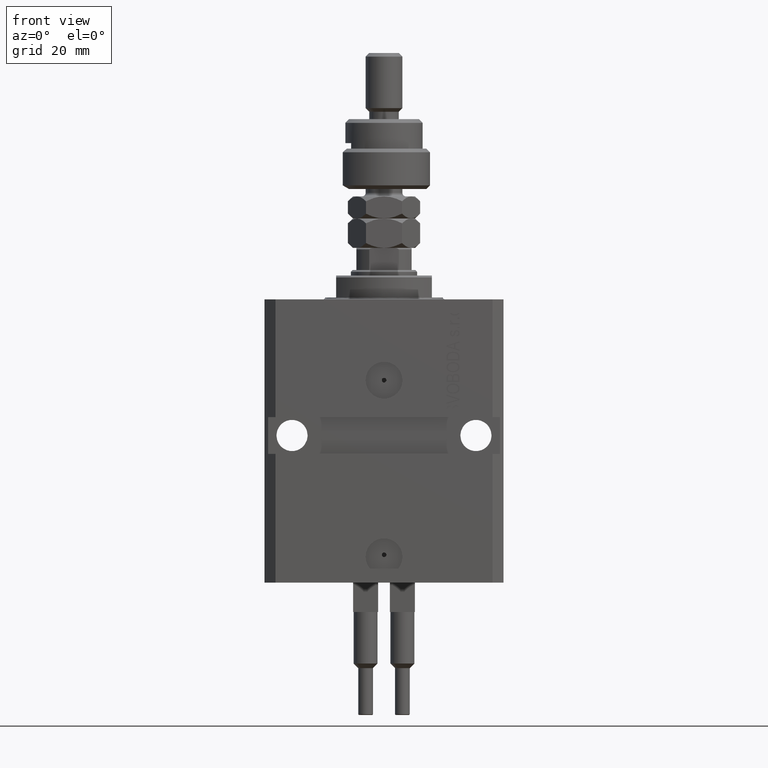
[diagram: clean part render]
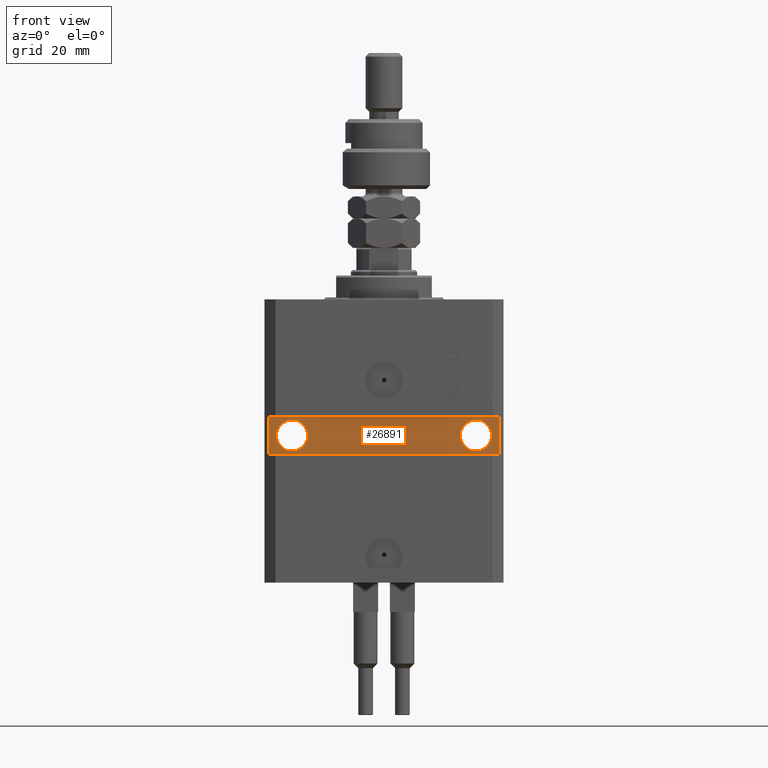
[diagram: same view with one face highlighted and labeled with its STEP entity id]
A machine part, front view. The second image highlights one B-rep face of the part: STEP entity #26891.
In plain terms, the highlighted planar face has unit normal (0, -1, 0).
Its self-contained STEP definition (entity closure, byte-faithful):
#115 = VERTEX_POINT ( 'NONE', #44223 ) ;
#260 = DIRECTION ( 'NONE',  ( 1.000000000000000000, 0.000000000000000000, 0.000000000000000000 ) ) ;
#276 = CARTESIAN_POINT ( 'NONE',  ( -24.99999999999999289, -20.49999999999950262, -37.00000000000000000 ) ) ;
#288 = AXIS2_PLACEMENT_3D ( 'NONE', #43874, #12705, #260 ) ;
#1607 = LINE ( 'NONE', #33537, #48180 ) ;
#1792 = DIRECTION ( 'NONE',  ( 0.000000000000000000, 0.000000000000000000, -1.000000000000000000 ) ) ;
#2745 = PLANE ( 'NONE',  #44620 ) ;
#3899 = DIRECTION ( 'NONE',  ( 1.394545208792185644E-16, -1.000000000000000000, 1.232595164407830946E-32 ) ) ;
#4909 = DIRECTION ( 'NONE',  ( 1.101411730780568590E-16, -1.000000000000000000, 0.000000000000000000 ) ) ;
#5345 = AXIS2_PLACEMENT_3D ( 'NONE', #11692, #3899, #15322 ) ;
#5627 = EDGE_CURVE ( 'NONE', #28277, #41321, #1607, .T. ) ;
#6901 = CIRCLE ( 'NONE', #288, 4.249999999993782751 ) ;
#7638 = VERTEX_POINT ( 'NONE', #23513 ) ;
#8421 = CARTESIAN_POINT ( 'NONE',  ( -31.49999999999650413, -20.49999999999950262, -77.00000000000000000 ) ) ;
#8473 = EDGE_CURVE ( 'NONE', #42512, #41321, #21516, .T. ) ;
#8946 = CARTESIAN_POINT ( 'NONE',  ( 32.49999999999650413, -20.49999999999949196, -32.00000000000000711 ) ) ;
#9516 = DIRECTION ( 'NONE',  ( 1.067522139062765303E-16, -1.000000000000000000, 0.000000000000000000 ) ) ;
#10152 = DIRECTION ( 'NONE',  ( 1.000000000000000000, 1.067522139062765303E-16, 1.067522139062765303E-16 ) ) ;
#11308 = EDGE_CURVE ( 'NONE', #48399, #7638, #6901, .T. ) ;
#11692 = CARTESIAN_POINT ( 'NONE',  ( 25.00000000000000711, -20.49999999999949551, -36.99999999999999289 ) ) ;
#11950 = EDGE_CURVE ( 'NONE', #28277, #19546, #27144, .T. ) ;
#12216 = DIRECTION ( 'NONE',  ( 1.000000000000000000, 0.000000000000000000, 0.000000000000000000 ) ) ;
#12705 = DIRECTION ( 'NONE',  ( 1.101411730780568590E-16, -1.000000000000000000, 0.000000000000000000 ) ) ;
#13419 = DIRECTION ( 'NONE',  ( 1.000000000000000000, 1.067522139062765303E-16, 0.000000000000000000 ) ) ;
#13700 = EDGE_LOOP ( 'NONE', ( #19384, #18614 ) ) ;
#15322 = DIRECTION ( 'NONE',  ( 1.000000000000000000, 0.000000000000000000, 0.000000000000000000 ) ) ;
#16756 = DIRECTION ( 'NONE',  ( -1.000000000000000000, -1.067522139062765303E-16, 1.067522139062765303E-16 ) ) ;
#17008 = CIRCLE ( 'NONE', #35266, 4.249999999989050536 ) ;
#17650 = EDGE_CURVE ( 'NONE', #115, #30106, #17008, .T. ) ;
#17819 = FACE_BOUND ( 'NONE', #25055, .T. ) ;
#18110 = VECTOR ( 'NONE', #16756, 1000.000000000000000 ) ;
#18582 = CARTESIAN_POINT ( 'NONE',  ( 2.166708070385810581E-15, -20.49999999999949907, 0.000000000000000000 ) ) ;
#18614 = ORIENTED_EDGE ( 'NONE', *, *, #44950, .F. ) ;
#19384 = ORIENTED_EDGE ( 'NONE', *, *, #17650, .F. ) ;
#19546 = VERTEX_POINT ( 'NONE', #30724 ) ;
#21516 = LINE ( 'NONE', #29054, #27577 ) ;
#22709 = ORIENTED_EDGE ( 'NONE', *, *, #11950, .F. ) ;
#23513 = CARTESIAN_POINT ( 'NONE',  ( -29.24999999999377920, -20.49999999999950262, -37.00000000000000000 ) ) ;
#23735 = EDGE_CURVE ( 'NONE', #7638, #48399, #34499, .T. ) ;
#24026 = DIRECTION ( 'NONE',  ( 1.000000000000000000, 0.000000000000000000, 0.000000000000000000 ) ) ;
#24271 = DIRECTION ( 'NONE',  ( 0.000000000000000000, 0.000000000000000000, 1.000000000000000000 ) ) ;
#24306 = LINE ( 'NONE', #8946, #18110 ) ;
#25055 = EDGE_LOOP ( 'NONE', ( #29544, #32115 ) ) ;
#26891 = ADVANCED_FACE ( 'NONE', ( #37562, #17819, #38329 ), #2745, .T. ) ;
#27144 = LINE ( 'NONE', #8421, #34170 ) ;
#27577 = VECTOR ( 'NONE', #1792, 1000.000000000000000 ) ;
#28277 = VERTEX_POINT ( 'NONE', #49140 ) ;
#28431 = CARTESIAN_POINT ( 'NONE',  ( 25.00000000000000711, -20.49999999999949551, -36.99999999999999289 ) ) ;
#28672 = DIRECTION ( 'NONE',  ( 1.394545208792185644E-16, -1.000000000000000000, 1.232595164407830946E-32 ) ) ;
#29054 = CARTESIAN_POINT ( 'NONE',  ( 31.49999999999651124, -20.49999999999949551, -77.00000000000000000 ) ) ;
#29544 = ORIENTED_EDGE ( 'NONE', *, *, #11308, .F. ) ;
#30106 = VERTEX_POINT ( 'NONE', #50432 ) ;
#30724 = CARTESIAN_POINT ( 'NONE',  ( -31.49999999999650413, -20.49999999999950262, -32.00000000000000000 ) ) ;
#31972 = ORIENTED_EDGE ( 'NONE', *, *, #8473, .F. ) ;
#32115 = ORIENTED_EDGE ( 'NONE', *, *, #23735, .F. ) ;
#33537 = CARTESIAN_POINT ( 'NONE',  ( -32.49999999999650413, -20.49999999999949907, -41.99999999999999289 ) ) ;
#34170 = VECTOR ( 'NONE', #24271, 1000.000000000000000 ) ;
#34322 = CARTESIAN_POINT ( 'NONE',  ( 31.49999999999650413, -20.49999999999949196, -41.99999999999998579 ) ) ;
#34499 = CIRCLE ( 'NONE', #46977, 4.249999999993782751 ) ;
#35266 = AXIS2_PLACEMENT_3D ( 'NONE', #28431, #28672, #24026 ) ;
#37562 = FACE_BOUND ( 'NONE', #13700, .T. ) ;
#38329 = FACE_OUTER_BOUND ( 'NONE', #46063, .T. ) ;
#41321 = VERTEX_POINT ( 'NONE', #34322 ) ;
#42512 = VERTEX_POINT ( 'NONE', #47259 ) ;
#42882 = ORIENTED_EDGE ( 'NONE', *, *, #5627, .T. ) ;
#43874 = CARTESIAN_POINT ( 'NONE',  ( -24.99999999999999289, -20.49999999999950262, -37.00000000000000000 ) ) ;
#44223 = CARTESIAN_POINT ( 'NONE',  ( 29.24999999998905764, -20.49999999999949551, -36.99999999999999289 ) ) ;
#44620 = AXIS2_PLACEMENT_3D ( 'NONE', #18582, #9516, #13419 ) ;
#44799 = ORIENTED_EDGE ( 'NONE', *, *, #51249, .T. ) ;
#44950 = EDGE_CURVE ( 'NONE', #30106, #115, #45979, .T. ) ;
#45979 = CIRCLE ( 'NONE', #5345, 4.249999999989050536 ) ;
#46063 = EDGE_LOOP ( 'NONE', ( #44799, #22709, #42882, #31972 ) ) ;
#46977 = AXIS2_PLACEMENT_3D ( 'NONE', #276, #4909, #12216 ) ;
#47259 = CARTESIAN_POINT ( 'NONE',  ( 31.49999999999651124, -20.49999999999949196, -32.00000000000000711 ) ) ;
#48180 = VECTOR ( 'NONE', #10152, 1000.000000000000000 ) ;
#48399 = VERTEX_POINT ( 'NONE', #50433 ) ;
#49140 = CARTESIAN_POINT ( 'NONE',  ( -31.49999999999650413, -20.49999999999949907, -41.99999999999999289 ) ) ;
#50432 = CARTESIAN_POINT ( 'NONE',  ( 20.75000000001095657, -20.49999999999949551, -36.99999999999999289 ) ) ;
#50433 = CARTESIAN_POINT ( 'NONE',  ( -20.75000000000621014, -20.49999999999950262, -37.00000000000000000 ) ) ;
#51249 = EDGE_CURVE ( 'NONE', #42512, #19546, #24306, .T. ) ;